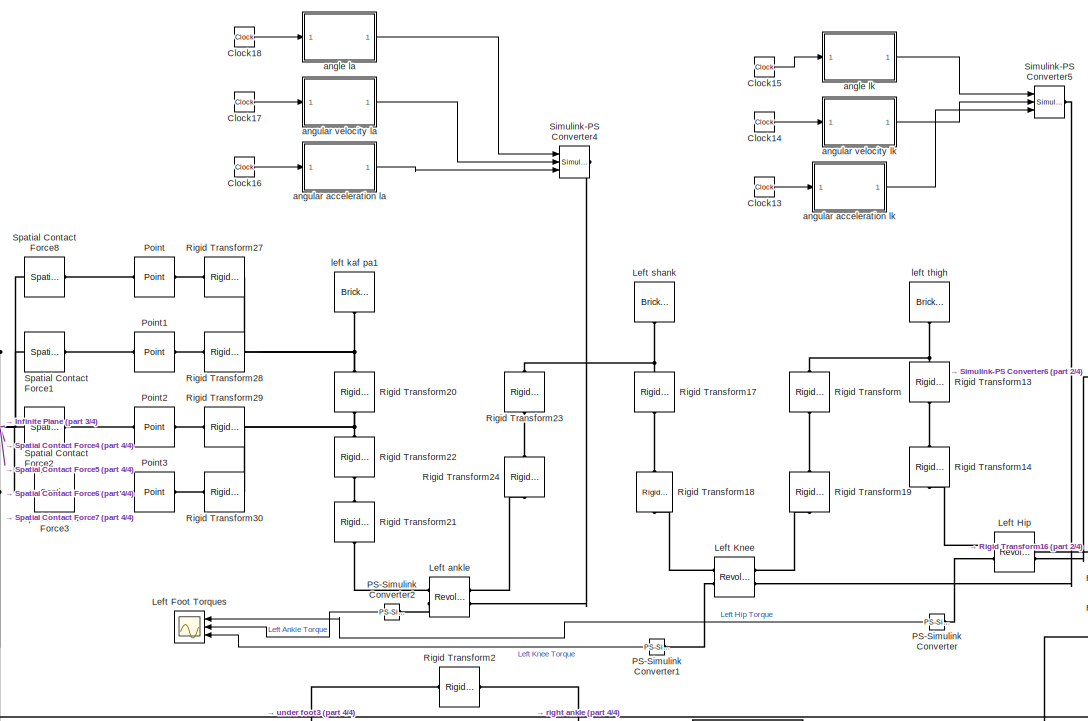
[diagram: root canvas - part 1/4, top center region]
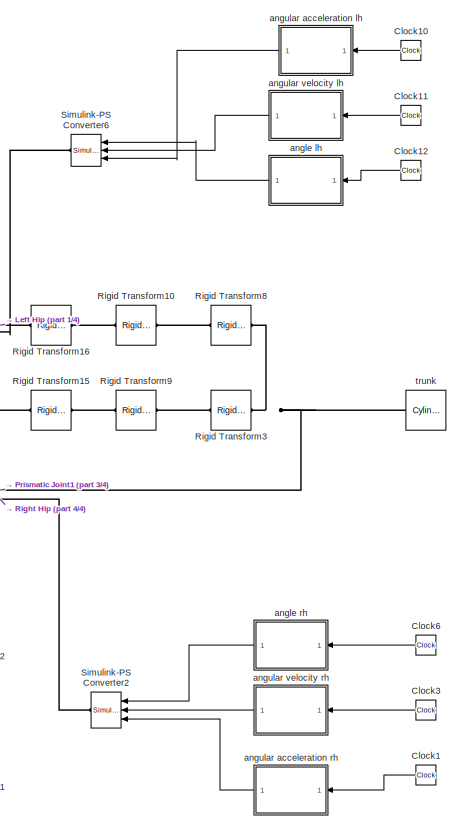
[diagram: root canvas - part 2/4, middle right region]
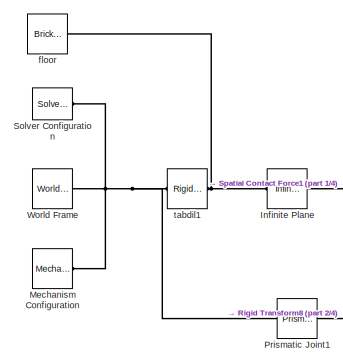
[diagram: root canvas - part 3/4, middle left region]
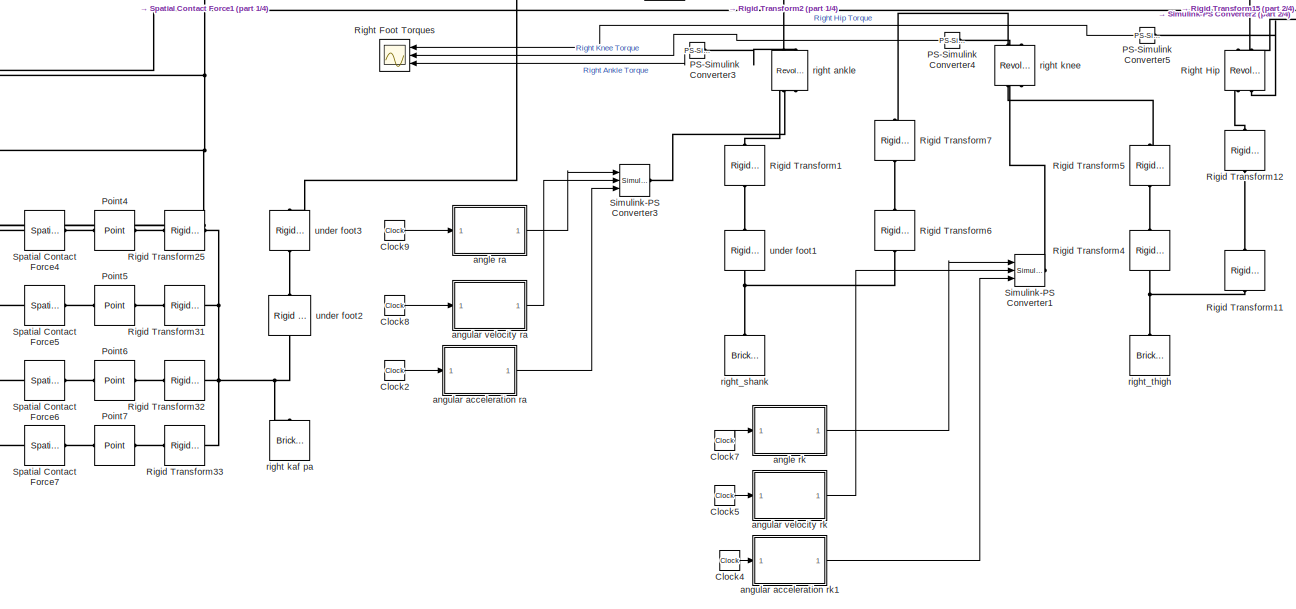
[diagram: root canvas - part 4/4, bottom center region]
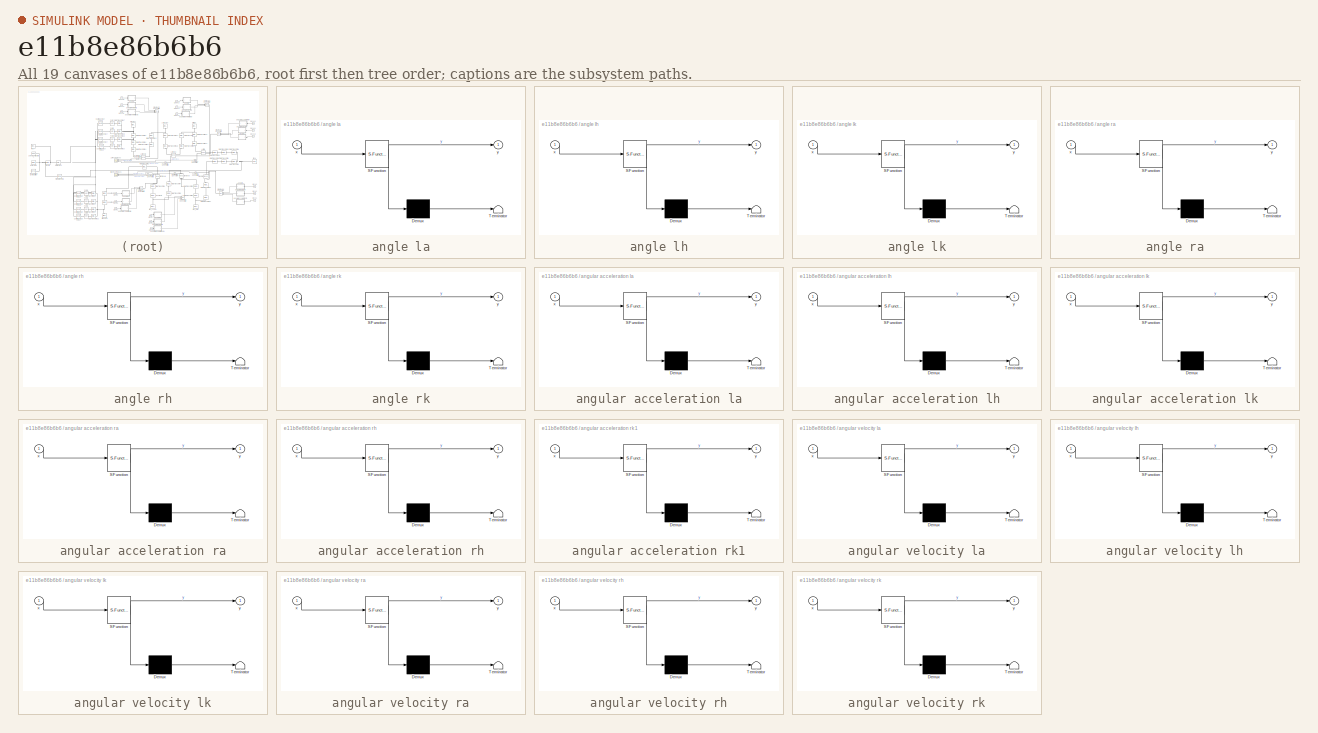
[diagram: thumbnail index - all 19 canvases of the model, root first then tree order]
MODEL slx_e11b8e86b6b6
KIND model
CONFIG AbsTol = auto
CONFIG EnableMultiTasking = off
CONFIG FixedStep = auto
CONFIG MaxStep = auto
CONFIG MinStep = auto
CONFIG RelTol = 1e-3
CONFIG SampleTimeConstraint = Unconstrained
CONFIG Solver = ode15s
CONFIG SolverName = ode15s
CONFIG StartTime = 0.0
CONFIG StopTime = 10
BLOCK [Reference]  tabdil1  REF=sm_lib/Frames and
Transforms/Rigid
Transform
  Ports = [0, 0, 0, 0, 0, 1, 1]
  SourceBlock = sm_lib/Frames and\nTransforms/Rigid\nTransform
  SourceType = Rigid\nTransform
BLOCK [Clock] Clock1
BLOCK [Clock] Clock10
BLOCK [Clock] Clock11
BLOCK [Clock] Clock12
BLOCK [Clock] Clock13
BLOCK [Clock] Clock14
BLOCK [Clock] Clock15
BLOCK [Clock] Clock16
BLOCK [Clock] Clock17
BLOCK [Clock] Clock18
BLOCK [Clock] Clock2
BLOCK [Clock] Clock3
BLOCK [Clock] Clock4
BLOCK [Clock] Clock5
BLOCK [Clock] Clock6
BLOCK [Clock] Clock7
BLOCK [Clock] Clock8
BLOCK [Clock] Clock9
BLOCK [Reference] Infinite Plane  REF=sm_lib/Curves and Surfaces/Infinite Plane
  Ports = [0, 0, 0, 0, 0, 1, 1]
  SourceBlock = sm_lib/Curves and Surfaces/Infinite Plane
  SourceType = Infinite Plane
BLOCK [Scope] Left Foot Torques
  Floating = off
  NumInputPorts = 3
  Ports = [3]
  ScopeSpecificationString = Simulink.scopes.TimeScopeBlockCfg('CurrentConfiguration', extmgr.ConfigurationSet(extmgr.Configuration('Core','General UI',true,'FigureColor',[0.941176470588235 0.941176470588235 0.941176470588235]),extmgr.Configuration('Core','Source UI',true),extmgr.Configuration('Sources','WiredSimulink',true),extmgr.Configuration('Visuals','Time Domain',true,'SerializedDisplays',{struct('MinYLimReal','-4884.42...<+3173ch>
BLOCK [Reference] Left Hip  REF=sm_lib/Joints/Revolute Joint
  Ports = [0, 0, 0, 0, 0, 2, 2]
  SourceBlock = sm_lib/Joints/Revolute Joint
  SourceType = Revolute Joint
BLOCK [Reference] Left Knee  REF=sm_lib/Joints/Revolute Joint
  Ports = [0, 0, 0, 0, 0, 2, 2]
  SourceBlock = sm_lib/Joints/Revolute Joint
  SourceType = Revolute Joint
BLOCK [Reference] Left ankle  REF=sm_lib/Joints/Revolute Joint
  Ports = [0, 0, 0, 0, 0, 2, 2]
  SourceBlock = sm_lib/Joints/Revolute Joint
  SourceType = Revolute Joint
BLOCK [Reference] Left shank  REF=sm_lib/Body Elements/Brick Solid
  Ports = [0, 0, 0, 0, 0, 0, 1]
  SourceBlock = sm_lib/Body Elements/Brick Solid
  SourceType = Brick Solid
BLOCK [Reference] Mechanism Configuration  REF=sm_lib/Utilities/Mechanism
Configuration
  Ports = [0, 0, 0, 0, 0, 0, 1]
  SourceBlock = sm_lib/Utilities/Mechanism\nConfiguration
  SourceType = Mechanism\nConfiguration
BLOCK [Reference] PS-Simulink Converter  REF=nesl_utility/PS-Simulink
Converter
  Ports = [0, 1, 0, 0, 0, 1]
  SourceBlock = nesl_utility/PS-Simulink\nConverter
  SourceType = PS-Simulink\nConverter
BLOCK [Reference] PS-Simulink Converter1  REF=nesl_utility/PS-Simulink
Converter
  Ports = [0, 1, 0, 0, 0, 1]
  SourceBlock = nesl_utility/PS-Simulink\nConverter
  SourceType = PS-Simulink\nConverter
BLOCK [Reference] PS-Simulink Converter2  REF=nesl_utility/PS-Simulink
Converter
  Ports = [0, 1, 0, 0, 0, 1]
  SourceBlock = nesl_utility/PS-Simulink\nConverter
  SourceType = PS-Simulink\nConverter
BLOCK [Reference] PS-Simulink Converter3  REF=nesl_utility/PS-Simulink
Converter
  Ports = [0, 1, 0, 0, 0, 1]
  SourceBlock = nesl_utility/PS-Simulink\nConverter
  SourceType = PS-Simulink\nConverter
BLOCK [Reference] PS-Simulink Converter4  REF=nesl_utility/PS-Simulink
Converter
  Ports = [0, 1, 0, 0, 0, 1]
  SourceBlock = nesl_utility/PS-Simulink\nConverter
  SourceType = PS-Simulink\nConverter
BLOCK [Reference] PS-Simulink Converter5  REF=nesl_utility/PS-Simulink
Converter
  Ports = [0, 1, 0, 0, 0, 1]
  SourceBlock = nesl_utility/PS-Simulink\nConverter
  SourceType = PS-Simulink\nConverter
BLOCK [Reference] Point  REF=sm_lib/Curves and Surfaces/Point
  Ports = [0, 0, 0, 0, 0, 1, 1]
  SourceBlock = sm_lib/Curves and Surfaces/Point
  SourceType = Point
BLOCK [Reference] Point1  REF=sm_lib/Curves and Surfaces/Point
  Ports = [0, 0, 0, 0, 0, 1, 1]
  SourceBlock = sm_lib/Curves and Surfaces/Point
  SourceType = Point
BLOCK [Reference] Point2  REF=sm_lib/Curves and Surfaces/Point
  Ports = [0, 0, 0, 0, 0, 1, 1]
  SourceBlock = sm_lib/Curves and Surfaces/Point
  SourceType = Point
BLOCK [Reference] Point3  REF=sm_lib/Curves and Surfaces/Point
  Ports = [0, 0, 0, 0, 0, 1, 1]
  SourceBlock = sm_lib/Curves and Surfaces/Point
  SourceType = Point
BLOCK [Reference] Point4  REF=sm_lib/Curves and Surfaces/Point
  Ports = [0, 0, 0, 0, 0, 1, 1]
  SourceBlock = sm_lib/Curves and Surfaces/Point
  SourceType = Point
BLOCK [Reference] Point5  REF=sm_lib/Curves and Surfaces/Point
  Ports = [0, 0, 0, 0, 0, 1, 1]
  SourceBlock = sm_lib/Curves and Surfaces/Point
  SourceType = Point
BLOCK [Reference] Point6  REF=sm_lib/Curves and Surfaces/Point
  Ports = [0, 0, 0, 0, 0, 1, 1]
  SourceBlock = sm_lib/Curves and Surfaces/Point
  SourceType = Point
BLOCK [Reference] Point7  REF=sm_lib/Curves and Surfaces/Point
  Ports = [0, 0, 0, 0, 0, 1, 1]
  SourceBlock = sm_lib/Curves and Surfaces/Point
  SourceType = Point
BLOCK [Reference] Prismatic Joint1  REF=sm_lib/Joints/Prismatic
Joint
  Ports = [0, 0, 0, 0, 0, 1, 1]
  SourceBlock = sm_lib/Joints/Prismatic\nJoint
  SourceType = Prismatic\nJoint
BLOCK [Scope] Right Foot Torques
  Floating = off
  NumInputPorts = 3
  Ports = [3]
  ScopeSpecificationString = Simulink.scopes.TimeScopeBlockCfg('CurrentConfiguration', extmgr.ConfigurationSet(extmgr.Configuration('Core','General UI',true,'FigureColor',[0.941176470588235 0.941176470588235 0.941176470588235]),extmgr.Configuration('Core','Source UI',true),extmgr.Configuration('Sources','WiredSimulink',true,'DataLoggingVariableName','ScopeData1'),extmgr.Configuration('Visuals','Time Domain',true,'SerializedDi...<+3216ch>
BLOCK [Reference] Right Hip  REF=sm_lib/Joints/Revolute Joint
  Ports = [0, 0, 0, 0, 0, 2, 2]
  SourceBlock = sm_lib/Joints/Revolute Joint
  SourceType = Revolute Joint
BLOCK [Reference] Rigid Transform  REF=sm_lib/Frames and
Transforms/Rigid
Transform
  Ports = [0, 0, 0, 0, 0, 1, 1]
  SourceBlock = sm_lib/Frames and\nTransforms/Rigid\nTransform
  SourceType = Rigid\nTransform
BLOCK [Reference] Rigid Transform1  REF=sm_lib/Frames and
Transforms/Rigid
Transform
  Ports = [0, 0, 0, 0, 0, 1, 1]
  SourceBlock = sm_lib/Frames and\nTransforms/Rigid\nTransform
  SourceType = Rigid\nTransform
BLOCK [Reference] Rigid Transform10  REF=sm_lib/Frames and
Transforms/Rigid
Transform
  Ports = [0, 0, 0, 0, 0, 1, 1]
  SourceBlock = sm_lib/Frames and\nTransforms/Rigid\nTransform
  SourceType = Rigid\nTransform
BLOCK [Reference] Rigid Transform11  REF=sm_lib/Frames and
Transforms/Rigid
Transform
  Ports = [0, 0, 0, 0, 0, 1, 1]
  SourceBlock = sm_lib/Frames and\nTransforms/Rigid\nTransform
  SourceType = Rigid\nTransform
BLOCK [Reference] Rigid Transform12  REF=sm_lib/Frames and
Transforms/Rigid
Transform
  Ports = [0, 0, 0, 0, 0, 1, 1]
  SourceBlock = sm_lib/Frames and\nTransforms/Rigid\nTransform
  SourceType = Rigid\nTransform
BLOCK [Reference] Rigid Transform13  REF=sm_lib/Frames and
Transforms/Rigid
Transform
  Ports = [0, 0, 0, 0, 0, 1, 1]
  SourceBlock = sm_lib/Frames and\nTransforms/Rigid\nTransform
  SourceType = Rigid\nTransform
BLOCK [Reference] Rigid Transform14  REF=sm_lib/Frames and
Transforms/Rigid
Transform
  Ports = [0, 0, 0, 0, 0, 1, 1]
  SourceBlock = sm_lib/Frames and\nTransforms/Rigid\nTransform
  SourceType = Rigid\nTransform
BLOCK [Reference] Rigid Transform15  REF=sm_lib/Frames and
Transforms/Rigid
Transform
  Ports = [0, 0, 0, 0, 0, 1, 1]
  SourceBlock = sm_lib/Frames and\nTransforms/Rigid\nTransform
  SourceType = Rigid\nTransform
BLOCK [Reference] Rigid Transform16  REF=sm_lib/Frames and
Transforms/Rigid
Transform
  Ports = [0, 0, 0, 0, 0, 1, 1]
  SourceBlock = sm_lib/Frames and\nTransforms/Rigid\nTransform
  SourceType = Rigid\nTransform
BLOCK [Reference] Rigid Transform17  REF=sm_lib/Frames and
Transforms/Rigid
Transform
  Ports = [0, 0, 0, 0, 0, 1, 1]
  SourceBlock = sm_lib/Frames and\nTransforms/Rigid\nTransform
  SourceType = Rigid\nTransform
BLOCK [Reference] Rigid Transform18  REF=sm_lib/Frames and
Transforms/Rigid
Transform
  Ports = [0, 0, 0, 0, 0, 1, 1]
  SourceBlock = sm_lib/Frames and\nTransforms/Rigid\nTransform
  SourceType = Rigid\nTransform
BLOCK [Reference] Rigid Transform19  REF=sm_lib/Frames and
Transforms/Rigid
Transform
  Ports = [0, 0, 0, 0, 0, 1, 1]
  SourceBlock = sm_lib/Frames and\nTransforms/Rigid\nTransform
  SourceType = Rigid\nTransform
BLOCK [Reference] Rigid Transform2  REF=sm_lib/Frames and
Transforms/Rigid
Transform
  Ports = [0, 0, 0, 0, 0, 1, 1]
  SourceBlock = sm_lib/Frames and\nTransforms/Rigid\nTransform
  SourceType = Rigid\nTransform
BLOCK [Reference] Rigid Transform20  REF=sm_lib/Frames and
Transforms/Rigid
Transform
  Ports = [0, 0, 0, 0, 0, 1, 1]
  SourceBlock = sm_lib/Frames and\nTransforms/Rigid\nTransform
  SourceType = Rigid\nTransform
BLOCK [Reference] Rigid Transform21  REF=sm_lib/Frames and
Transforms/Rigid
Transform
  Ports = [0, 0, 0, 0, 0, 1, 1]
  SourceBlock = sm_lib/Frames and\nTransforms/Rigid\nTransform
  SourceType = Rigid\nTransform
BLOCK [Reference] Rigid Transform22  REF=sm_lib/Frames and
Transforms/Rigid
Transform
  Ports = [0, 0, 0, 0, 0, 1, 1]
  SourceBlock = sm_lib/Frames and\nTransforms/Rigid\nTransform
  SourceType = Rigid\nTransform
BLOCK [Reference] Rigid Transform23  REF=sm_lib/Frames and
Transforms/Rigid
Transform
  Ports = [0, 0, 0, 0, 0, 1, 1]
  SourceBlock = sm_lib/Frames and\nTransforms/Rigid\nTransform
  SourceType = Rigid\nTransform
BLOCK [Reference] Rigid Transform24  REF=sm_lib/Frames and
Transforms/Rigid
Transform
  Ports = [0, 0, 0, 0, 0, 1, 1]
  SourceBlock = sm_lib/Frames and\nTransforms/Rigid\nTransform
  SourceType = Rigid\nTransform
BLOCK [Reference] Rigid Transform25  REF=sm_lib/Frames and
Transforms/Rigid
Transform
  Ports = [0, 0, 0, 0, 0, 1, 1]
  SourceBlock = sm_lib/Frames and\nTransforms/Rigid\nTransform
  SourceType = Rigid\nTransform
BLOCK [Reference] Rigid Transform27  REF=sm_lib/Frames and
Transforms/Rigid
Transform
  Ports = [0, 0, 0, 0, 0, 1, 1]
  SourceBlock = sm_lib/Frames and\nTransforms/Rigid\nTransform
  SourceType = Rigid\nTransform
BLOCK [Reference] Rigid Transform28  REF=sm_lib/Frames and
Transforms/Rigid
Transform
  Ports = [0, 0, 0, 0, 0, 1, 1]
  SourceBlock = sm_lib/Frames and\nTransforms/Rigid\nTransform
  SourceType = Rigid\nTransform
BLOCK [Reference] Rigid Transform29  REF=sm_lib/Frames and
Transforms/Rigid
Transform
  Ports = [0, 0, 0, 0, 0, 1, 1]
  SourceBlock = sm_lib/Frames and\nTransforms/Rigid\nTransform
  SourceType = Rigid\nTransform
BLOCK [Reference] Rigid Transform3  REF=sm_lib/Frames and
Transforms/Rigid
Transform
  Ports = [0, 0, 0, 0, 0, 1, 1]
  SourceBlock = sm_lib/Frames and\nTransforms/Rigid\nTransform
  SourceType = Rigid\nTransform
BLOCK [Reference] Rigid Transform30  REF=sm_lib/Frames and
Transforms/Rigid
Transform
  Ports = [0, 0, 0, 0, 0, 1, 1]
  SourceBlock = sm_lib/Frames and\nTransforms/Rigid\nTransform
  SourceType = Rigid\nTransform
BLOCK [Reference] Rigid Transform31  REF=sm_lib/Frames and
Transforms/Rigid
Transform
  Ports = [0, 0, 0, 0, 0, 1, 1]
  SourceBlock = sm_lib/Frames and\nTransforms/Rigid\nTransform
  SourceType = Rigid\nTransform
BLOCK [Reference] Rigid Transform32  REF=sm_lib/Frames and
Transforms/Rigid
Transform
  Ports = [0, 0, 0, 0, 0, 1, 1]
  SourceBlock = sm_lib/Frames and\nTransforms/Rigid\nTransform
  SourceType = Rigid\nTransform
BLOCK [Reference] Rigid Transform33  REF=sm_lib/Frames and
Transforms/Rigid
Transform
  Ports = [0, 0, 0, 0, 0, 1, 1]
  SourceBlock = sm_lib/Frames and\nTransforms/Rigid\nTransform
  SourceType = Rigid\nTransform
BLOCK [Reference] Rigid Transform4  REF=sm_lib/Frames and
Transforms/Rigid
Transform
  Ports = [0, 0, 0, 0, 0, 1, 1]
  SourceBlock = sm_lib/Frames and\nTransforms/Rigid\nTransform
  SourceType = Rigid\nTransform
BLOCK [Reference] Rigid Transform5  REF=sm_lib/Frames and
Transforms/Rigid
Transform
  Ports = [0, 0, 0, 0, 0, 1, 1]
  SourceBlock = sm_lib/Frames and\nTransforms/Rigid\nTransform
  SourceType = Rigid\nTransform
BLOCK [Reference] Rigid Transform6  REF=sm_lib/Frames and
Transforms/Rigid
Transform
  Ports = [0, 0, 0, 0, 0, 1, 1]
  SourceBlock = sm_lib/Frames and\nTransforms/Rigid\nTransform
  SourceType = Rigid\nTransform
BLOCK [Reference] Rigid Transform7  REF=sm_lib/Frames and
Transforms/Rigid
Transform
  Ports = [0, 0, 0, 0, 0, 1, 1]
  SourceBlock = sm_lib/Frames and\nTransforms/Rigid\nTransform
  SourceType = Rigid\nTransform
BLOCK [Reference] Rigid Transform8  REF=sm_lib/Frames and
Transforms/Rigid
Transform
  Ports = [0, 0, 0, 0, 0, 1, 1]
  SourceBlock = sm_lib/Frames and\nTransforms/Rigid\nTransform
  SourceType = Rigid\nTransform
BLOCK [Reference] Rigid Transform9  REF=sm_lib/Frames and
Transforms/Rigid
Transform
  Ports = [0, 0, 0, 0, 0, 1, 1]
  SourceBlock = sm_lib/Frames and\nTransforms/Rigid\nTransform
  SourceType = Rigid\nTransform
BLOCK [Reference] Simulink-PS Converter1  REF=nesl_utility/Simulink-PS
Converter
  Ports = [3, 0, 0, 0, 0, 0, 1]
  SourceBlock = nesl_utility/Simulink-PS\nConverter
  SourceType = Simulink-PS\nConverter
BLOCK [Reference] Simulink-PS Converter2  REF=nesl_utility/Simulink-PS
Converter
  Ports = [3, 0, 0, 0, 0, 0, 1]
  SourceBlock = nesl_utility/Simulink-PS\nConverter
  SourceType = Simulink-PS\nConverter
BLOCK [Reference] Simulink-PS Converter3  REF=nesl_utility/Simulink-PS
Converter
  Ports = [3, 0, 0, 0, 0, 0, 1]
  SourceBlock = nesl_utility/Simulink-PS\nConverter
  SourceType = Simulink-PS\nConverter
BLOCK [Reference] Simulink-PS Converter4  REF=nesl_utility/Simulink-PS
Converter
  Ports = [3, 0, 0, 0, 0, 0, 1]
  SourceBlock = nesl_utility/Simulink-PS\nConverter
  SourceType = Simulink-PS\nConverter
BLOCK [Reference] Simulink-PS Converter5  REF=nesl_utility/Simulink-PS
Converter
  Ports = [3, 0, 0, 0, 0, 0, 1]
  SourceBlock = nesl_utility/Simulink-PS\nConverter
  SourceType = Simulink-PS\nConverter
BLOCK [Reference] Simulink-PS Converter6  REF=nesl_utility/Simulink-PS
Converter
  Ports = [3, 0, 0, 0, 0, 0, 1]
  SourceBlock = nesl_utility/Simulink-PS\nConverter
  SourceType = Simulink-PS\nConverter
BLOCK [Reference] Solver Configuration  REF=nesl_utility/Solver
Configuration
  Ports = [0, 0, 0, 0, 0, 0, 1]
  SourceBlock = nesl_utility/Solver\nConfiguration
  SourceType = Solver\nConfiguration
BLOCK [Reference] Spatial Contact Force1  REF=sm_lib/Forces and
Torques/Spatial
Contact Force
  Ports = [0, 0, 0, 0, 0, 1, 1]
  SourceBlock = sm_lib/Forces and\nTorques/Spatial\nContact Force
  SourceType = Spatial\nContact Force
BLOCK [Reference] Spatial Contact Force2  REF=sm_lib/Forces and
Torques/Spatial
Contact Force
  Ports = [0, 0, 0, 0, 0, 1, 1]
  SourceBlock = sm_lib/Forces and\nTorques/Spatial\nContact Force
  SourceType = Spatial\nContact Force
BLOCK [Reference] Spatial Contact Force3  REF=sm_lib/Forces and
Torques/Spatial
Contact Force
  Ports = [0, 0, 0, 0, 0, 1, 1]
  SourceBlock = sm_lib/Forces and\nTorques/Spatial\nContact Force
  SourceType = Spatial\nContact Force
BLOCK [Reference] Spatial Contact Force4  REF=sm_lib/Forces and
Torques/Spatial
Contact Force
  Ports = [0, 0, 0, 0, 0, 1, 1]
  SourceBlock = sm_lib/Forces and\nTorques/Spatial\nContact Force
  SourceType = Spatial\nContact Force
BLOCK [Reference] Spatial Contact Force5  REF=sm_lib/Forces and
Torques/Spatial
Contact Force
  Ports = [0, 0, 0, 0, 0, 1, 1]
  SourceBlock = sm_lib/Forces and\nTorques/Spatial\nContact Force
  SourceType = Spatial\nContact Force
BLOCK [Reference] Spatial Contact Force6  REF=sm_lib/Forces and
Torques/Spatial
Contact Force
  Ports = [0, 0, 0, 0, 0, 1, 1]
  SourceBlock = sm_lib/Forces and\nTorques/Spatial\nContact Force
  SourceType = Spatial\nContact Force
BLOCK [Reference] Spatial Contact Force7  REF=sm_lib/Forces and
Torques/Spatial
Contact Force
  Ports = [0, 0, 0, 0, 0, 1, 1]
  SourceBlock = sm_lib/Forces and\nTorques/Spatial\nContact Force
  SourceType = Spatial\nContact Force
BLOCK [Reference] Spatial Contact Force8  REF=sm_lib/Forces and
Torques/Spatial
Contact Force
  Ports = [0, 0, 0, 0, 0, 1, 1]
  SourceBlock = sm_lib/Forces and\nTorques/Spatial\nContact Force
  SourceType = Spatial\nContact Force
BLOCK [Reference] World Frame  REF=sm_lib/Frames and
Transforms/World Frame
  Ports = [0, 0, 0, 0, 0, 0, 1]
  SourceBlock = sm_lib/Frames and\nTransforms/World Frame
  SourceType = World Frame
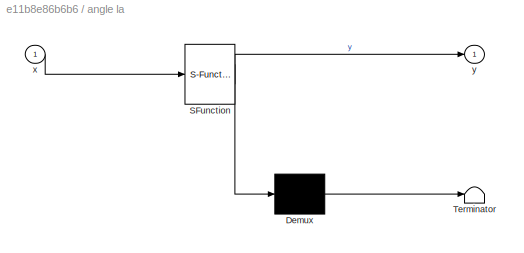
BLOCK [SubSystem] angle la
  ErrorFcn = Stateflow.Translate.translate
  PermitHierarchicalResolution = ExplicitOnly
  Ports = [1, 1]
  SFBlockType = MATLAB Function
  TreatAsAtomicUnit = on
BLOCK [Demux] angle la/ Demux 
  Outputs = 1
  Ports = [1, 1]
BLOCK [S-Function] angle la/ SFunction 
  EnableBusSupport = off
  FunctionName = sf_sfun
  PortCounts = [1 2]
  Ports = [1, 2]
  SFcnIsStateOwnerBlock = off
  SFunctionDeploymentMode = off
  Tag = Stateflow S-Function Simulation2018_With_PreviousData 16
BLOCK [Terminator] angle la/ Terminator 
BLOCK [Inport] angle la/x
BLOCK [Outport] angle la/y
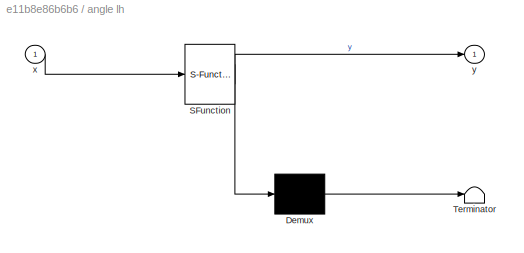
BLOCK [SubSystem] angle lh
  ErrorFcn = Stateflow.Translate.translate
  PermitHierarchicalResolution = ExplicitOnly
  Ports = [1, 1]
  SFBlockType = MATLAB Function
  TreatAsAtomicUnit = on
BLOCK [Demux] angle lh/ Demux 
  Outputs = 1
  Ports = [1, 1]
BLOCK [S-Function] angle lh/ SFunction 
  EnableBusSupport = off
  FunctionName = sf_sfun
  PortCounts = [1 2]
  Ports = [1, 2]
  SFcnIsStateOwnerBlock = off
  SFunctionDeploymentMode = off
  Tag = Stateflow S-Function Simulation2018_With_PreviousData 10
BLOCK [Terminator] angle lh/ Terminator 
BLOCK [Inport] angle lh/x
BLOCK [Outport] angle lh/y
BLOCK [SubSystem] angle lk
  ErrorFcn = Stateflow.Translate.translate
  PermitHierarchicalResolution = ExplicitOnly
  Ports = [1, 1]
  SFBlockType = MATLAB Function
  TreatAsAtomicUnit = on
BLOCK [Demux] angle lk/ Demux 
  Outputs = 1
  Ports = [1, 1]
BLOCK [S-Function] angle lk/ SFunction 
  EnableBusSupport = off
  FunctionName = sf_sfun
  PortCounts = [1 2]
  Ports = [1, 2]
  SFcnIsStateOwnerBlock = off
  SFunctionDeploymentMode = off
  Tag = Stateflow S-Function Simulation2018_With_PreviousData 13
BLOCK [Terminator] angle lk/ Terminator 
BLOCK [Inport] angle lk/x
BLOCK [Outport] angle lk/y
BLOCK [SubSystem] angle ra
  ErrorFcn = Stateflow.Translate.translate
  PermitHierarchicalResolution = ExplicitOnly
  Ports = [1, 1]
  SFBlockType = MATLAB Function
  TreatAsAtomicUnit = on
BLOCK [Demux] angle ra/ Demux 
  Outputs = 1
  Ports = [1, 1]
BLOCK [S-Function] angle ra/ SFunction 
  EnableBusSupport = off
  FunctionName = sf_sfun
  PortCounts = [1 2]
  Ports = [1, 2]
  SFcnIsStateOwnerBlock = off
  SFunctionDeploymentMode = off
  Tag = Stateflow S-Function Simulation2018_With_PreviousData 1
BLOCK [Terminator] angle ra/ Terminator 
BLOCK [Inport] angle ra/x
BLOCK [Outport] angle ra/y
BLOCK [SubSystem] angle rh
  ErrorFcn = Stateflow.Translate.translate
  PermitHierarchicalResolution = ExplicitOnly
  Ports = [1, 1]
  SFBlockType = MATLAB Function
  TreatAsAtomicUnit = on
BLOCK [Demux] angle rh/ Demux 
  Outputs = 1
  Ports = [1, 1]
BLOCK [S-Function] angle rh/ SFunction 
  EnableBusSupport = off
  FunctionName = sf_sfun
  PortCounts = [1 2]
  Ports = [1, 2]
  SFcnIsStateOwnerBlock = off
  SFunctionDeploymentMode = off
  Tag = Stateflow S-Function Simulation2018_With_PreviousData 3
BLOCK [Terminator] angle rh/ Terminator 
BLOCK [Inport] angle rh/x
BLOCK [Outport] angle rh/y
BLOCK [SubSystem] angle rk
  ErrorFcn = Stateflow.Translate.translate
  PermitHierarchicalResolution = ExplicitOnly
  Ports = [1, 1]
  SFBlockType = MATLAB Function
  TreatAsAtomicUnit = on
BLOCK [Demux] angle rk/ Demux 
  Outputs = 1
  Ports = [1, 1]
BLOCK [S-Function] angle rk/ SFunction 
  EnableBusSupport = off
  FunctionName = sf_sfun
  PortCounts = [1 2]
  Ports = [1, 2]
  SFcnIsStateOwnerBlock = off
  SFunctionDeploymentMode = off
  Tag = Stateflow S-Function Simulation2018_With_PreviousData 5
BLOCK [Terminator] angle rk/ Terminator 
BLOCK [Inport] angle rk/x
BLOCK [Outport] angle rk/y
BLOCK [SubSystem] angular acceleration la
  ErrorFcn = Stateflow.Translate.translate
  PermitHierarchicalResolution = ExplicitOnly
  Ports = [1, 1]
  SFBlockType = MATLAB Function
  TreatAsAtomicUnit = on
BLOCK [Demux] angular acceleration la/ Demux 
  Outputs = 1
  Ports = [1, 1]
BLOCK [S-Function] angular acceleration la/ SFunction 
  EnableBusSupport = off
  FunctionName = sf_sfun
  PortCounts = [1 2]
  Ports = [1, 2]
  SFcnIsStateOwnerBlock = off
  SFunctionDeploymentMode = off
  Tag = Stateflow S-Function Simulation2018_With_PreviousData 17
BLOCK [Terminator] angular acceleration la/ Terminator 
BLOCK [Inport] angular acceleration la/x
BLOCK [Outport] angular acceleration la/y
BLOCK [SubSystem] angular acceleration lh
  ErrorFcn = Stateflow.Translate.translate
  PermitHierarchicalResolution = ExplicitOnly
  Ports = [1, 1]
  SFBlockType = MATLAB Function
  TreatAsAtomicUnit = on
BLOCK [Demux] angular acceleration lh/ Demux 
  Outputs = 1
  Ports = [1, 1]
BLOCK [S-Function] angular acceleration lh/ SFunction 
  EnableBusSupport = off
  FunctionName = sf_sfun
  PortCounts = [1 2]
  Ports = [1, 2]
  SFcnIsStateOwnerBlock = off
  SFunctionDeploymentMode = off
  Tag = Stateflow S-Function Simulation2018_With_PreviousData 11
BLOCK [Terminator] angular acceleration lh/ Terminator 
BLOCK [Inport] angular acceleration lh/x
BLOCK [Outport] angular acceleration lh/y
BLOCK [SubSystem] angular acceleration lk
  ErrorFcn = Stateflow.Translate.translate
  PermitHierarchicalResolution = ExplicitOnly
  Ports = [1, 1]
  SFBlockType = MATLAB Function
  TreatAsAtomicUnit = on
BLOCK [Demux] angular acceleration lk/ Demux 
  Outputs = 1
  Ports = [1, 1]
BLOCK [S-Function] angular acceleration lk/ SFunction 
  EnableBusSupport = off
  FunctionName = sf_sfun
  PortCounts = [1 2]
  Ports = [1, 2]
  SFcnIsStateOwnerBlock = off
  SFunctionDeploymentMode = off
  Tag = Stateflow S-Function Simulation2018_With_PreviousData 14
BLOCK [Terminator] angular acceleration lk/ Terminator 
BLOCK [Inport] angular acceleration lk/x
BLOCK [Outport] angular acceleration lk/y
BLOCK [SubSystem] angular acceleration ra
  ErrorFcn = Stateflow.Translate.translate
  PermitHierarchicalResolution = ExplicitOnly
  Ports = [1, 1]
  SFBlockType = MATLAB Function
  TreatAsAtomicUnit = on
BLOCK [Demux] angular acceleration ra/ Demux 
  Outputs = 1
  Ports = [1, 1]
BLOCK [S-Function] angular acceleration ra/ SFunction 
  EnableBusSupport = off
  FunctionName = sf_sfun
  PortCounts = [1 2]
  Ports = [1, 2]
  SFcnIsStateOwnerBlock = off
  SFunctionDeploymentMode = off
  Tag = Stateflow S-Function Simulation2018_With_PreviousData 8
BLOCK [Terminator] angular acceleration ra/ Terminator 
BLOCK [Inport] angular acceleration ra/x
BLOCK [Outport] angular acceleration ra/y
BLOCK [SubSystem] angular acceleration rh
  ErrorFcn = Stateflow.Translate.translate
  PermitHierarchicalResolution = ExplicitOnly
  Ports = [1, 1]
  SFBlockType = MATLAB Function
  TreatAsAtomicUnit = on
BLOCK [Demux] angular acceleration rh/ Demux 
  Outputs = 1
  Ports = [1, 1]
BLOCK [S-Function] angular acceleration rh/ SFunction 
  EnableBusSupport = off
  FunctionName = sf_sfun
  PortCounts = [1 2]
  Ports = [1, 2]
  SFcnIsStateOwnerBlock = off
  SFunctionDeploymentMode = off
  Tag = Stateflow S-Function Simulation2018_With_PreviousData 4
BLOCK [Terminator] angular acceleration rh/ Terminator 
BLOCK [Inport] angular acceleration rh/x
BLOCK [Outport] angular acceleration rh/y
BLOCK [SubSystem] angular acceleration rk1
  ErrorFcn = Stateflow.Translate.translate
  PermitHierarchicalResolution = ExplicitOnly
  Ports = [1, 1]
  SFBlockType = MATLAB Function
  TreatAsAtomicUnit = on
BLOCK [Demux] angular acceleration rk1/ Demux 
  Outputs = 1
  Ports = [1, 1]
BLOCK [S-Function] angular acceleration rk1/ SFunction 
  EnableBusSupport = off
  FunctionName = sf_sfun
  PortCounts = [1 2]
  Ports = [1, 2]
  SFcnIsStateOwnerBlock = off
  SFunctionDeploymentMode = off
  Tag = Stateflow S-Function Simulation2018_With_PreviousData 2
BLOCK [Terminator] angular acceleration rk1/ Terminator 
BLOCK [Inport] angular acceleration rk1/x
BLOCK [Outport] angular acceleration rk1/y
BLOCK [SubSystem] angular velocity la
  ErrorFcn = Stateflow.Translate.translate
  PermitHierarchicalResolution = ExplicitOnly
  Ports = [1, 1]
  SFBlockType = MATLAB Function
  TreatAsAtomicUnit = on
BLOCK [Demux] angular velocity la/ Demux 
  Outputs = 1
  Ports = [1, 1]
BLOCK [S-Function] angular velocity la/ SFunction 
  EnableBusSupport = off
  FunctionName = sf_sfun
  PortCounts = [1 2]
  Ports = [1, 2]
  SFcnIsStateOwnerBlock = off
  SFunctionDeploymentMode = off
  Tag = Stateflow S-Function Simulation2018_With_PreviousData 18
BLOCK [Terminator] angular velocity la/ Terminator 
BLOCK [Inport] angular velocity la/x
BLOCK [Outport] angular velocity la/y
BLOCK [SubSystem] angular velocity lh
  ErrorFcn = Stateflow.Translate.translate
  PermitHierarchicalResolution = ExplicitOnly
  Ports = [1, 1]
  SFBlockType = MATLAB Function
  TreatAsAtomicUnit = on
BLOCK [Demux] angular velocity lh/ Demux 
  Outputs = 1
  Ports = [1, 1]
BLOCK [S-Function] angular velocity lh/ SFunction 
  EnableBusSupport = off
  FunctionName = sf_sfun
  PortCounts = [1 2]
  Ports = [1, 2]
  SFcnIsStateOwnerBlock = off
  SFunctionDeploymentMode = off
  Tag = Stateflow S-Function Simulation2018_With_PreviousData 12
BLOCK [Terminator] angular velocity lh/ Terminator 
BLOCK [Inport] angular velocity lh/x
BLOCK [Outport] angular velocity lh/y
BLOCK [SubSystem] angular velocity lk
  ErrorFcn = Stateflow.Translate.translate
  PermitHierarchicalResolution = ExplicitOnly
  Ports = [1, 1]
  SFBlockType = MATLAB Function
  TreatAsAtomicUnit = on
BLOCK [Demux] angular velocity lk/ Demux 
  Outputs = 1
  Ports = [1, 1]
BLOCK [S-Function] angular velocity lk/ SFunction 
  EnableBusSupport = off
  FunctionName = sf_sfun
  PortCounts = [1 2]
  Ports = [1, 2]
  SFcnIsStateOwnerBlock = off
  SFunctionDeploymentMode = off
  Tag = Stateflow S-Function Simulation2018_With_PreviousData 15
BLOCK [Terminator] angular velocity lk/ Terminator 
BLOCK [Inport] angular velocity lk/x
BLOCK [Outport] angular velocity lk/y
BLOCK [SubSystem] angular velocity ra
  ErrorFcn = Stateflow.Translate.translate
  PermitHierarchicalResolution = ExplicitOnly
  Ports = [1, 1]
  SFBlockType = MATLAB Function
  TreatAsAtomicUnit = on
BLOCK [Demux] angular velocity ra/ Demux 
  Outputs = 1
  Ports = [1, 1]
BLOCK [S-Function] angular velocity ra/ SFunction 
  EnableBusSupport = off
  FunctionName = sf_sfun
  PortCounts = [1 2]
  Ports = [1, 2]
  SFcnIsStateOwnerBlock = off
  SFunctionDeploymentMode = off
  Tag = Stateflow S-Function Simulation2018_With_PreviousData 9
BLOCK [Terminator] angular velocity ra/ Terminator 
BLOCK [Inport] angular velocity ra/x
BLOCK [Outport] angular velocity ra/y
BLOCK [SubSystem] angular velocity rh
  ErrorFcn = Stateflow.Translate.translate
  PermitHierarchicalResolution = ExplicitOnly
  Ports = [1, 1]
  SFBlockType = MATLAB Function
  TreatAsAtomicUnit = on
BLOCK [Demux] angular velocity rh/ Demux 
  Outputs = 1
  Ports = [1, 1]
BLOCK [S-Function] angular velocity rh/ SFunction 
  EnableBusSupport = off
  FunctionName = sf_sfun
  PortCounts = [1 2]
  Ports = [1, 2]
  SFcnIsStateOwnerBlock = off
  SFunctionDeploymentMode = off
  Tag = Stateflow S-Function Simulation2018_With_PreviousData 6
BLOCK [Terminator] angular velocity rh/ Terminator 
BLOCK [Inport] angular velocity rh/x
BLOCK [Outport] angular velocity rh/y
BLOCK [SubSystem] angular velocity rk
  ErrorFcn = Stateflow.Translate.translate
  PermitHierarchicalResolution = ExplicitOnly
  Ports = [1, 1]
  SFBlockType = MATLAB Function
  TreatAsAtomicUnit = on
BLOCK [Demux] angular velocity rk/ Demux 
  Outputs = 1
  Ports = [1, 1]
BLOCK [S-Function] angular velocity rk/ SFunction 
  EnableBusSupport = off
  FunctionName = sf_sfun
  PortCounts = [1 2]
  Ports = [1, 2]
  SFcnIsStateOwnerBlock = off
  SFunctionDeploymentMode = off
  Tag = Stateflow S-Function Simulation2018_With_PreviousData 7
BLOCK [Terminator] angular velocity rk/ Terminator 
BLOCK [Inport] angular velocity rk/x
BLOCK [Outport] angular velocity rk/y
BLOCK [Reference] floor  REF=sm_lib/Body Elements/Brick Solid
  Ports = [0, 0, 0, 0, 0, 0, 1]
  SourceBlock = sm_lib/Body Elements/Brick Solid
  SourceType = Brick Solid
BLOCK [Reference] left kaf pa1  REF=sm_lib/Body Elements/Brick Solid
  Ports = [0, 0, 0, 0, 0, 0, 1]
  SourceBlock = sm_lib/Body Elements/Brick Solid
  SourceType = Brick Solid
BLOCK [Reference] left thigh  REF=sm_lib/Body Elements/Brick Solid
  Ports = [0, 0, 0, 0, 0, 0, 1]
  SourceBlock = sm_lib/Body Elements/Brick Solid
  SourceType = Brick Solid
BLOCK [Reference] right ankle  REF=sm_lib/Joints/Revolute Joint
  Ports = [0, 0, 0, 0, 0, 2, 2]
  SourceBlock = sm_lib/Joints/Revolute Joint
  SourceType = Revolute Joint
BLOCK [Reference] right kaf pa  REF=sm_lib/Body Elements/Brick Solid
  Ports = [0, 0, 0, 0, 0, 0, 1]
  SourceBlock = sm_lib/Body Elements/Brick Solid
  SourceType = Brick Solid
BLOCK [Reference] right knee  REF=sm_lib/Joints/Revolute Joint
  Ports = [0, 0, 0, 0, 0, 2, 2]
  SourceBlock = sm_lib/Joints/Revolute Joint
  SourceType = Revolute Joint
BLOCK [Reference] right_shank  REF=sm_lib/Body Elements/Brick Solid
  Ports = [0, 0, 0, 0, 0, 0, 1]
  SourceBlock = sm_lib/Body Elements/Brick Solid
  SourceType = Brick Solid
BLOCK [Reference] right_thigh  REF=sm_lib/Body Elements/Brick Solid
  Ports = [0, 0, 0, 0, 0, 0, 1]
  SourceBlock = sm_lib/Body Elements/Brick Solid
  SourceType = Brick Solid
BLOCK [Reference] trunk  REF=sm_lib/Body Elements/Cylindrical Solid
  Ports = [0, 0, 0, 0, 0, 0, 1]
  SourceBlock = sm_lib/Body Elements/Cylindrical Solid
  SourceType = Cylindrical Solid
BLOCK [Reference] under foot1  REF=sm_lib/Frames and
Transforms/Rigid
Transform
  Ports = [0, 0, 0, 0, 0, 1, 1]
  SourceBlock = sm_lib/Frames and\nTransforms/Rigid\nTransform
  SourceType = Rigid\nTransform
BLOCK [Reference] under foot2  REF=sm_lib/Frames and
Transforms/Rigid
Transform
  Ports = [0, 0, 0, 0, 0, 1, 1]
  SourceBlock = sm_lib/Frames and\nTransforms/Rigid\nTransform
  SourceType = Rigid\nTransform
BLOCK [Reference] under foot3  REF=sm_lib/Frames and
Transforms/Rigid
Transform
  Ports = [0, 0, 0, 0, 0, 1, 1]
  SourceBlock = sm_lib/Frames and\nTransforms/Rigid\nTransform
  SourceType = Rigid\nTransform
LINE Clock10:1 -> angular acceleration lh:1
LINE Clock11:1 -> angular velocity lh:1
LINE Clock12:1 -> angle lh:1
LINE Clock13:1 -> angular acceleration lk:1
LINE Clock14:1 -> angular velocity lk:1
LINE Clock15:1 -> angle lk:1
LINE Clock16:1 -> angular acceleration la:1
LINE Clock17:1 -> angular velocity la:1
LINE Clock18:1 -> angle la:1
LINE Clock1:1 -> angular acceleration rh:1
LINE Clock2:1 -> angular acceleration ra:1
LINE Clock3:1 -> angular velocity rh:1
LINE Clock4:1 -> angular acceleration rk1:1
LINE Clock5:1 -> angular velocity rk:1
LINE Clock6:1 -> angle rh:1
LINE Clock7:1 -> angle rk:1
LINE Clock8:1 -> angular velocity ra:1
LINE Clock9:1 -> angle ra:1
LINE PS-Simulink Converter1:1 -> Left Foot Torques:3
LINE PS-Simulink Converter2:1 -> Left Foot Torques:2
LINE PS-Simulink Converter3:1 -> Right Foot Torques:3
LINE PS-Simulink Converter4:1 -> Right Foot Torques:2
LINE PS-Simulink Converter5:1 -> Right Foot Torques:1
LINE PS-Simulink Converter:1 -> Left Foot Torques:1
LINE angle la:1 -> Simulink-PS Converter4:1
LINE angle lh:1 -> Simulink-PS Converter6:1
LINE angle lk:1 -> Simulink-PS Converter5:1
LINE angle ra:1 -> Simulink-PS Converter3:1
LINE angle rh:1 -> Simulink-PS Converter2:1
LINE angle rk:1 -> Simulink-PS Converter1:1
LINE angular acceleration la:1 -> Simulink-PS Converter4:3
LINE angular acceleration lh:1 -> Simulink-PS Converter6:3
LINE angular acceleration lk:1 -> Simulink-PS Converter5:3
LINE angular acceleration ra:1 -> Simulink-PS Converter3:3
LINE angular acceleration rh:1 -> Simulink-PS Converter2:3
LINE angular acceleration rk1:1 -> Simulink-PS Converter1:3
LINE angular velocity la:1 -> Simulink-PS Converter4:2
LINE angular velocity lh:1 -> Simulink-PS Converter6:2
LINE angular velocity lk:1 -> Simulink-PS Converter5:2
LINE angular velocity ra:1 -> Simulink-PS Converter3:2
LINE angular velocity rh:1 -> Simulink-PS Converter2:2
LINE angular velocity rk:1 -> Simulink-PS Converter1:2
PNET net1:  tabdil1:LConn1 -- Mechanism Configuration:RConn1 -- Prismatic Joint1:LConn1 -- Solver Configuration:RConn1 -- World Frame:RConn1
PNET net2:  tabdil1:RConn1 -- Infinite Plane:LConn1 -- floor:RConn1
PNET net3: Infinite Plane:RConn1 -- Spatial Contact Force1:LConn1 -- Spatial Contact Force2:LConn1 -- Spatial Contact Force3:LConn1 -- Spatial Contact Force4:LConn1 -- Spatial Contact Force5:LConn1 -- Spatial Contact Force6:LConn1 -- Spatial Contact Force7:LConn1 -- Spatial Contact Force8:LConn1
PLINE Left Hip:LConn1 -- Rigid Transform16:LConn1
PLINE Left Hip:LConn2 -- Simulink-PS Converter6:RConn1
PLINE Left Hip:RConn1 -- Rigid Transform14:RConn1
PLINE Left Hip:RConn2 -- PS-Simulink Converter:LConn1
PLINE Left Knee:LConn1 -- Rigid Transform19:RConn1
PLINE Left Knee:LConn2 -- Simulink-PS Converter5:RConn1
PLINE Left Knee:RConn1 -- Rigid Transform18:RConn1
PLINE Left Knee:RConn2 -- PS-Simulink Converter1:LConn1
PLINE Left ankle:LConn1 -- Rigid Transform24:RConn1
PLINE Left ankle:LConn2 -- Simulink-PS Converter4:RConn1
PLINE Left ankle:RConn1 -- Rigid Transform21:RConn1
PLINE Left ankle:RConn2 -- PS-Simulink Converter2:LConn1
PNET net4: Left shank:RConn1 -- Rigid Transform17:LConn1 -- Rigid Transform23:LConn1
PLINE PS-Simulink Converter3:LConn1 -- right ankle:RConn2
PLINE PS-Simulink Converter4:LConn1 -- right knee:RConn2
PLINE PS-Simulink Converter5:LConn1 -- Right Hip:RConn2
PLINE Point1:LConn1 -- Rigid Transform28:RConn1
PLINE Point1:RConn1 -- Spatial Contact Force1:RConn1
PLINE Point2:LConn1 -- Rigid Transform29:RConn1
PLINE Point2:RConn1 -- Spatial Contact Force2:RConn1
PLINE Point3:LConn1 -- Rigid Transform30:RConn1
PLINE Point3:RConn1 -- Spatial Contact Force3:RConn1
PLINE Point4:LConn1 -- Rigid Transform25:RConn1
PLINE Point4:RConn1 -- Spatial Contact Force4:RConn1
PLINE Point5:LConn1 -- Rigid Transform31:RConn1
PLINE Point5:RConn1 -- Spatial Contact Force5:RConn1
PLINE Point6:LConn1 -- Rigid Transform32:RConn1
PLINE Point6:RConn1 -- Spatial Contact Force6:RConn1
PLINE Point7:LConn1 -- Rigid Transform33:RConn1
PLINE Point7:RConn1 -- Spatial Contact Force7:RConn1
PLINE Point:LConn1 -- Rigid Transform27:RConn1
PLINE Point:RConn1 -- Spatial Contact Force8:RConn1
PNET net5: Prismatic Joint1:RConn1 -- Rigid Transform3:LConn1 -- Rigid Transform8:LConn1 -- trunk:RConn1
PLINE Right Hip:LConn1 -- Rigid Transform15:RConn1
PLINE Right Hip:LConn2 -- Simulink-PS Converter2:RConn1
PLINE Right Hip:RConn1 -- Rigid Transform12:RConn1
PLINE Rigid Transform10:LConn1 -- Rigid Transform8:RConn1
PLINE Rigid Transform10:RConn1 -- Rigid Transform16:RConn1
PNET net6: Rigid Transform11:LConn1 -- Rigid Transform4:LConn1 -- right_thigh:RConn1
PLINE Rigid Transform11:RConn1 -- Rigid Transform12:LConn1
PNET net7: Rigid Transform13:LConn1 -- Rigid Transform:LConn1 -- left thigh:RConn1
PLINE Rigid Transform13:RConn1 -- Rigid Transform14:LConn1
PLINE Rigid Transform15:LConn1 -- Rigid Transform9:RConn1
PLINE Rigid Transform17:RConn1 -- Rigid Transform18:LConn1
PLINE Rigid Transform19:LConn1 -- Rigid Transform:RConn1
PLINE Rigid Transform1:LConn1 -- under foot1:RConn1
PLINE Rigid Transform1:RConn1 -- right ankle:LConn1
PNET net8: Rigid Transform20:LConn1 -- Rigid Transform27:LConn1 -- Rigid Transform28:LConn1 -- Rigid Transform29:LConn1 -- Rigid Transform30:LConn1 -- left kaf pa1:RConn1
PLINE Rigid Transform20:RConn1 -- Rigid Transform22:LConn1
PLINE Rigid Transform21:LConn1 -- Rigid Transform22:RConn1
PLINE Rigid Transform23:RConn1 -- Rigid Transform24:LConn1
PNET net9: Rigid Transform25:LConn1 -- Rigid Transform31:LConn1 -- Rigid Transform32:LConn1 -- Rigid Transform33:LConn1 -- right kaf pa:RConn1 -- under foot2:LConn1
PLINE Rigid Transform2:LConn1 -- under foot3:RConn1
PLINE Rigid Transform2:RConn1 -- right ankle:RConn1
PLINE Rigid Transform3:RConn1 -- Rigid Transform9:LConn1
PLINE Rigid Transform4:RConn1 -- Rigid Transform5:LConn1
PLINE Rigid Transform5:RConn1 -- right knee:LConn1
PNET net10: Rigid Transform6:LConn1 -- right_shank:RConn1 -- under foot1:LConn1
PLINE Rigid Transform6:RConn1 -- Rigid Transform7:LConn1
PLINE Rigid Transform7:RConn1 -- right knee:RConn1
PLINE Simulink-PS Converter1:RConn1 -- right knee:LConn2
PLINE Simulink-PS Converter3:RConn1 -- right ankle:LConn2
PLINE under foot2:RConn1 -- under foot3:LConn1
note: PNET lines group multi-terminal physical nets as a canonical sorted terminal list (undirected conserving connections); 2-terminal nets keep the pairwise PLINE form
CHART angle ra states=1 transitions=1
  STATE_LABEL 'eML_blk_kernel()'
  STATE_LABEL 'SCRIPT:\nfunction y = fcn(x)\n\n      a0 =      -2.739  ;\n       a1 =       4.529  ;\n       b1 =       5.133 ;\n       a2 =      -1.302  ;\n       b2 =      -9.381  ;\n       a3 =      -1.241  ;\n       b3 =       2.598 ;\n       a4 =      0.8422  ;\n       b4 =      -2.712  ;\n       w =       3.062  ;\n\ny = a0 + a1*cos(x*w) + b1*sin(x*w) + ...\n               a2*cos(2*x*w) + b2*sin(2*x*w) + a3*cos(3*x*w) + ...<+66ch>'
CHART angular acceleration rk1 states=1 transitions=1
  STATE_LABEL 'eML_blk_kernel()'
  STATE_LABEL 'SCRIPT:\nfunction y = fcn(x)\n\n       a1 =      -3.531  ;\n       b1 =      -16.66 ;\n       a2 =      -8.844  ;\n       b2 =       9.965  ;\n       a3 =      -0.609 ;\n       b3 =       3.416  ;\n       a4 =     0.08159  ;\n       b4 =     -0.1367 ;\n       w =       3.082  ;\n\n\n\ny=a1*w^2*cos(w*x) + 4*a2*w^2*cos(2*w*x) + 9*a3*w^2*cos(3*w*x) + 16*a4*w^2*cos(4*w*x) + b1*w^2*sin(w*x) + 4*b2*w^2*sin(2*w*x) + 9*...<+41ch>'
CHART angle rh states=1 transitions=1
  STATE_LABEL 'eML_blk_kernel()'
  STATE_LABEL 'SCRIPT:\nfunction y = fcn(x)\n\n       a0 =       7.547  ;\n       a1 =       23.09  ;\n       b1 =      -8.588 ;\n       a2 =      -3.746  ;\n       b2 =      0.8751  ;\n       a3 =     -0.2391  ;\n       b3 =       1.835  ;\n       a4 =      0.1478  ;\n       b4 =    -0.03261  ;\n       w =       3.014  ;\n\ny = a0 + a1*cos(x*w) + b1*sin(x*w) + ...\n               a2*cos(2*x*w) + b2*sin(2*x*w) + a3*cos(3*x*w) ...<+68ch>'
CHART angular acceleration rh states=1 transitions=1
  STATE_LABEL 'eML_blk_kernel()'
  STATE_LABEL 'SCRIPT:\nfunction y = fcn(x)\n\n       a1 =       23.09  ;\n       b1 =      -8.588 ;\n       a2 =      -3.746  ;\n       b2 =      0.8751  ;\n       a3 =     -0.2391  ;\n       b3 =       1.835  ;\n       a4 =      0.1478  ;\n       b4 =    -0.03261  ;\n       w =       3.014  ;\n\n\n\ny = - a1*w^2*cos(w*x) - 4*a2*w^2*cos(2*w*x) - 9*a3*w^2*cos(3*w*x) - 16*a4*w^2*cos(4*w*x) - b1*w^2*sin(w*x) - 4*b2*w^2*sin(2*w*x...<+48ch>'
CHART angle rk states=1 transitions=1
  STATE_LABEL 'eML_blk_kernel()'
  STATE_LABEL 'SCRIPT:\nfunction y = fcn(x)\n\n       a0 =       16.67  ;\n       a1 =      -3.531  ;\n       b1 =      -16.66 ;\n       a2 =      -8.844  ;\n       b2 =       9.965  ;\n       a3 =      -0.609 ;\n       b3 =       3.416  ;\n       a4 =     0.08159  ;\n       b4 =     -0.1367 ;\n       w =       3.082  ;\n\ny = -(a0 + a1*cos(x*w) + b1*sin(x*w) + ...\n               a2*cos(2*x*w) + b2*sin(2*x*w) + a3*cos(3*x*w) ...<+69ch>'
CHART angular velocity rh states=1 transitions=1
  STATE_LABEL 'eML_blk_kernel()'
  STATE_LABEL 'SCRIPT:\nfunction y = fcn(x)\n\n       \n       a1 =       23.09  ;\n       b1 =      -8.588 ;\n       a2 =      -3.746  ;\n       b2 =      0.8751  ;\n       a3 =     -0.2391  ;\n       b3 =       1.835  ;\n       a4 =      0.1478  ;\n       b4 =    -0.03261  ;\n       w =       3.014  ;\n\n\n\ny = b1*w*cos(w*x) + 2*b2*w*cos(2*w*x) + 3*b3*w*cos(3*w*x) + 4*b4*w*cos(4*w*x) - a1*w*sin(w*x) - 2*a2*w*sin(2*w*x) - 3*a...<+36ch>'
CHART angular velocity rk states=1 transitions=1
  STATE_LABEL 'eML_blk_kernel()'
  STATE_LABEL 'SCRIPT:\nfunction y = fcn(x)\n\n       \n       a1 =      -3.531  ;\n       b1 =      -16.66 ;\n       a2 =      -8.844  ;\n       b2 =       9.965  ;\n       a3 =      -0.609 ;\n       b3 =       3.416  ;\n       a4 =     0.08159  ;\n       b4 =     -0.1367 ;\n       w =       3.082  ;\n\n\n\ny=a1*w*sin(w*x) - 2*b2*w*cos(2*w*x) - 3*b3*w*cos(3*w*x) - 4*b4*w*cos(4*w*x) - b1*w*cos(w*x) + 2*a2*w*sin(2*w*x) + 3*a3*w*...<+32ch>'
CHART angular acceleration ra states=1 transitions=1
  STATE_LABEL 'eML_blk_kernel()'
  STATE_LABEL 'SCRIPT:\nfunction y = fcn(x)\n\n       a1 =       4.529  ;\n       b1 =       5.133 ;\n       a2 =      -1.302  ;\n       b2 =      -9.381  ;\n       a3 =      -1.241  ;\n       b3 =       2.598 ;\n       a4 =      0.8422  ;\n       b4 =      -2.712  ;\n       w =       3.062  ;\n\n\n\ny = - a1*w^2*cos(w*x) - 4*a2*w^2*cos(2*w*x) - 9*a3*w^2*cos(3*w*x) - 16*a4*w^2*cos(4*w*x) - b1*w^2*sin(w*x) - 4*b2*w^2*sin(2*w*x)...<+47ch>'
CHART angular velocity ra states=1 transitions=1
  STATE_LABEL 'eML_blk_kernel()'
  STATE_LABEL 'SCRIPT:\nfunction y = fcn(x)\n\n       \n       a1 =       4.529  ;\n       b1 =       5.133 ;\n       a2 =      -1.302  ;\n       b2 =      -9.381  ;\n       a3 =      -1.241  ;\n       b3 =       2.598 ;\n       a4 =      0.8422  ;\n       b4 =      -2.712  ;\n       w =       3.062  ;\n\n\n\ny = b1*w*cos(w*x) + 2*b2*w*cos(2*w*x) + 3*b3*w*cos(3*w*x) + 4*b4*w*cos(4*w*x) - a1*w*sin(w*x) - 2*a2*w*sin(2*w*x) - 3*a3...<+35ch>'
CHART angle lh states=1 transitions=1
  STATE_LABEL 'eML_blk_kernel()'
  STATE_LABEL 'SCRIPT:\nfunction y = fcn(x)\n\n       a0 =       8.491  ;\n       a1 =      -21.68  ;\n       b1 =       10.46  ;\n       a2 =      -4.006  ;\n       b2 =       2.165  ;\n       a3 =       -0.54  ;\n       b3 =      -1.482  ;\n       a4 =    -0.05594  ;\n       b4 =   -0.006959  ;\n       w =       3.084  ;\n\ny = a0 + a1*cos(x*w) + b1*sin(x*w) + ...\n               a2*cos(2*x*w) + b2*sin(2*x*w) + a3*cos(3*x*w)...<+69ch>'
CHART angular acceleration lh states=1 transitions=1
  STATE_LABEL 'eML_blk_kernel()'
  STATE_LABEL 'SCRIPT:\nfunction y = fcn(x)\n\n       a1 =      -21.68  ;\n       b1 =       10.46  ;\n       a2 =      -4.006  ;\n       b2 =       2.165  ;\n       a3 =       -0.54  ;\n       b3 =      -1.482  ;\n       a4 =    -0.05594  ;\n       b4 =   -0.006959  ;\n       w =       3.084  ;\n\n\n\ny = - a1*w^2*cos(w*x) - 4*a2*w^2*cos(2*w*x) - 9*a3*w^2*cos(3*w*x) - 16*a4*w^2*cos(4*w*x) - b1*w^2*sin(w*x) - 4*b2*w^2*sin(2*w*...<+49ch>'
CHART angular velocity lh states=1 transitions=1
  STATE_LABEL 'eML_blk_kernel()'
  STATE_LABEL 'SCRIPT:\nfunction y = fcn(x)\n\n       \n       a1 =      -21.68  ;\n       b1 =       10.46  ;\n       a2 =      -4.006  ;\n       b2 =       2.165  ;\n       a3 =       -0.54  ;\n       b3 =      -1.482  ;\n       a4 =    -0.05594  ;\n       b4 =   -0.006959  ;\n       w =       3.084  ;\n\n\n\ny = b1*w*cos(w*x) + 2*b2*w*cos(2*w*x) + 3*b3*w*cos(3*w*x) + 4*b4*w*cos(4*w*x) - a1*w*sin(w*x) - 2*a2*w*sin(2*w*x) - 3*...<+37ch>'
CHART angle lk states=1 transitions=1
  STATE_LABEL 'eML_blk_kernel()'
  STATE_LABEL 'SCRIPT:\nfunction y = fcn(x)\n\n       a0 =       21.96  ;\n       a1 =       13.68  ;\n       b1 =      -8.087  ;\n       a2 =      -7.783  ;\n       b2 =       3.265  ;\n       a3 =       -4.76  ;\n       b3 =       13.73  ;\n       a4 =      -4.566  ;\n       b4 =        2.01  ;\n       w =       1.944  ;\n\ny = -(a0 + a1*cos(x*w) + b1*sin(x*w) + ...\n               a2*cos(2*x*w) + b2*sin(2*x*w) + a3*cos(3*x*...<+72ch>'
CHART angular acceleration lk states=1 transitions=1
  STATE_LABEL 'eML_blk_kernel()'
  STATE_LABEL 'SCRIPT:\nfunction y = fcn(x)\n\n       a1 =       13.68  ;\n       b1 =      -8.087  ;\n       a2 =      -7.783  ;\n       b2 =       3.265  ;\n       a3 =       -4.76  ;\n       b3 =       13.73  ;\n       a4 =      -4.566  ;\n       b4 =        2.01  ;\n       w =       1.944  ;\n\n\n\ny = a1*w^2*cos(w*x) + 4*a2*w^2*cos(2*w*x) + 9*a3*w^2*cos(3*w*x) + 16*a4*w^2*cos(4*w*x) + b1*w^2*sin(w*x) + 4*b2*w^2*sin(2*w*x)...<+47ch>'
CHART angular velocity lk states=1 transitions=1
  STATE_LABEL 'eML_blk_kernel()'
  STATE_LABEL 'SCRIPT:\nfunction y = fcn(x)\n\n       \n       a1 =       13.68  ;\n       b1 =      -8.087  ;\n       a2 =      -7.783  ;\n       b2 =       3.265  ;\n       a3 =       -4.76  ;\n       b3 =       13.73  ;\n       a4 =      -4.566  ;\n       b4 =        2.01  ;\n       w =       1.944  ;\n\n\n\ny = a1*w*sin(w*x) - 2*b2*w*cos(2*w*x) - 3*b3*w*cos(3*w*x) - 4*b4*w*cos(4*w*x) - b1*w*cos(w*x) + 2*a2*w*sin(2*w*x) + 3*...<+37ch>'
CHART angle la states=1 transitions=1
  STATE_LABEL 'eML_blk_kernel()'
  STATE_LABEL 'SCRIPT:\nfunction y = fcn(x)\n\n       a0 =      -3.553  ;\n       a1 =      -7.876  ;\n       b1 =      -2.493  ;\n       a2 =       -8.22  ;\n       b2 =      -3.326  ;\n       w =       2.689  ;\n\ny =  a0 + a1*cos(x*w) + b1*sin(x*w) + ...\n               a2*cos(2*x*w) + b2*sin(2*x*w);\n'
CHART angular acceleration la states=1 transitions=1
  STATE_LABEL 'eML_blk_kernel()'
  STATE_LABEL 'SCRIPT:\nfunction y = fcn(x)\n\n       a1 =      -7.876  ;\n       b1 =      -2.493  ;\n       a2 =       -8.22  ;\n       b2 =      -3.326  ;\n       w =       2.689  ;\n\n\n\ny=- a1*w^2*cos(w*x) - 4*a2*w^2*cos(2*w*x) - b1*w^2*sin(w*x) - 4*b2*w^2*sin(2*w*x);\n'
CHART angular velocity la states=1 transitions=1
  STATE_LABEL 'eML_blk_kernel()'
  STATE_LABEL 'SCRIPT:\nfunction y = fcn(x)\n\n       \n       a1 =      -7.876  ;\n       b1 =      -2.493  ;\n       a2 =       -8.22  ;\n       b2 =      -3.326  ;\n       w =       2.689  ;\n\n\n\ny = b1*w*cos(w*x) + 2*b2*w*cos(2*w*x) - a1*w*sin(w*x) - 2*a2*w*sin(2*w*x);\n'
